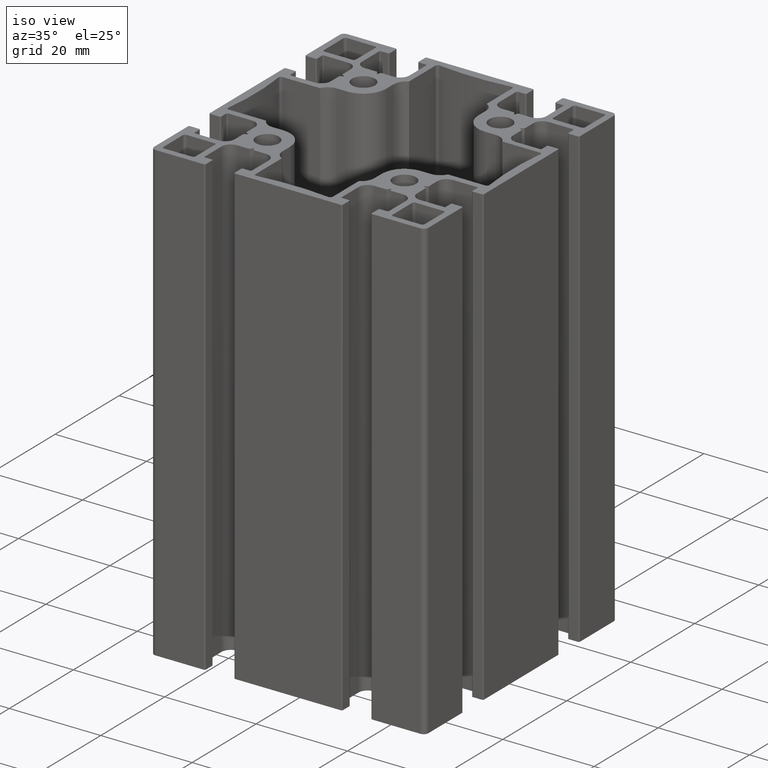
[diagram: clean part render]
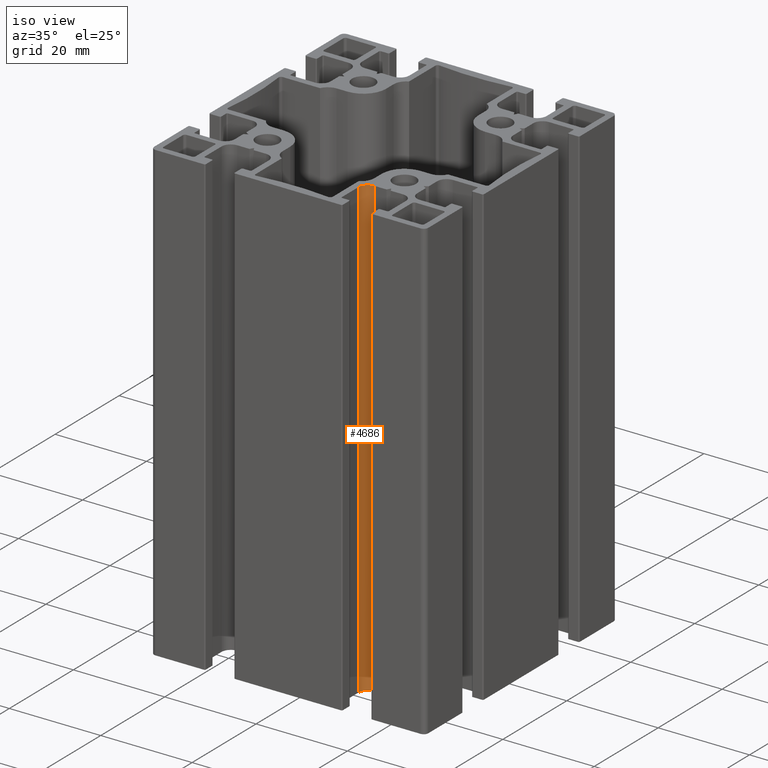
[diagram: same view with one face highlighted and labeled with its STEP entity id]
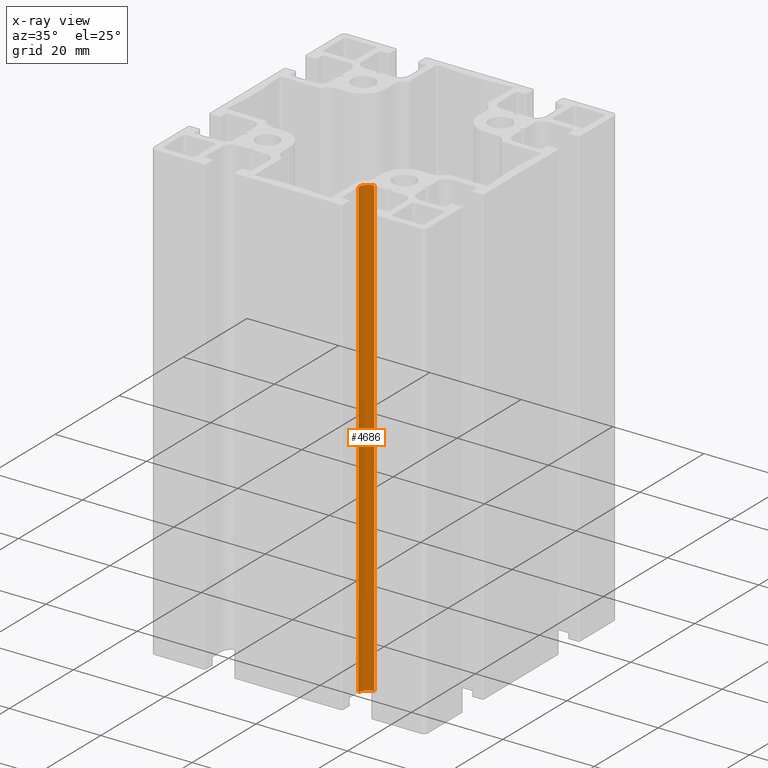
[diagram: x-ray of the same camera — body ghosted, the highlighted face saturated]
A machine part, iso view. The second image highlights one B-rep face of the part: STEP entity #4686.
The next image is the same camera in x-ray: the body ghosted, the highlighted face saturated — about 0% of this face is hidden behind the body in this view.
In plain terms, the highlighted cylindrical surface (edge-blend (fillet) strip) has radius 2.0067 mm, axis along (0, 0, 1).
Its self-contained STEP definition (entity closure, byte-faithful):
#181=CIRCLE('',#5071,2.00668890000006);
#182=CIRCLE('',#5072,2.00668890000006);
#333=CYLINDRICAL_SURFACE('',#5070,2.00668890000006);
#518=FACE_OUTER_BOUND('',#760,.T.);
#760=EDGE_LOOP('',(#3579,#3580,#3581,#3582));
#1158=LINE('',#7518,#1638);
#1159=LINE('',#7524,#1639);
#1638=VECTOR('',#6110,100.);
#1639=VECTOR('',#6117,100.);
#2121=VERTEX_POINT('',#7514);
#2122=VERTEX_POINT('',#7516);
#2123=VERTEX_POINT('',#7520);
#2124=VERTEX_POINT('',#7522);
#2734=EDGE_CURVE('',#2121,#2122,#1158,.T.);
#2735=EDGE_CURVE('',#2123,#2121,#181,.T.);
#2736=EDGE_CURVE('',#2124,#2122,#182,.T.);
#2737=EDGE_CURVE('',#2123,#2124,#1159,.T.);
#3579=ORIENTED_EDGE('',*,*,#2735,.T.);
#3580=ORIENTED_EDGE('',*,*,#2734,.T.);
#3581=ORIENTED_EDGE('',*,*,#2736,.F.);
#3582=ORIENTED_EDGE('',*,*,#2737,.F.);
#4686=ADVANCED_FACE('',(#518),#333,.F.);
#5070=AXIS2_PLACEMENT_3D('',#7519,#6111,#6112);
#5071=AXIS2_PLACEMENT_3D('',#7521,#6113,#6114);
#5072=AXIS2_PLACEMENT_3D('',#7523,#6115,#6116);
#6110=DIRECTION('',(0.,0.,1.));
#6111=DIRECTION('center_axis',(0.,0.,1.));
#6112=DIRECTION('ref_axis',(1.59339213513383E-13,-1.,0.));
#6113=DIRECTION('center_axis',(0.,0.,-1.));
#6114=DIRECTION('ref_axis',(1.59339213513383E-13,-1.,0.));
#6115=DIRECTION('center_axis',(0.,0.,-1.));
#6116=DIRECTION('ref_axis',(1.59339213513383E-13,-1.,0.));
#6117=DIRECTION('',(0.,0.,1.));
#7514=CARTESIAN_POINT('',(11.8394645099999,-19.9665545549998,0.));
#7516=CARTESIAN_POINT('',(11.8394645099999,-19.9665545549998,100.));
#7518=CARTESIAN_POINT('',(11.8394645099999,-19.9665545549998,0.));
#7519=CARTESIAN_POINT('Origin',(11.8394645100003,-21.9732434549998,0.));
#7520=CARTESIAN_POINT('',(9.83277561000019,-21.9732434549984,0.));
#7521=CARTESIAN_POINT('Origin',(11.8394645100003,-21.9732434549998,0.));
#7522=CARTESIAN_POINT('',(9.83277561000019,-21.9732434549984,100.));
#7523=CARTESIAN_POINT('Origin',(11.8394645100003,-21.9732434549998,100.));
#7524=CARTESIAN_POINT('',(9.83277561000019,-21.9732434549984,0.));